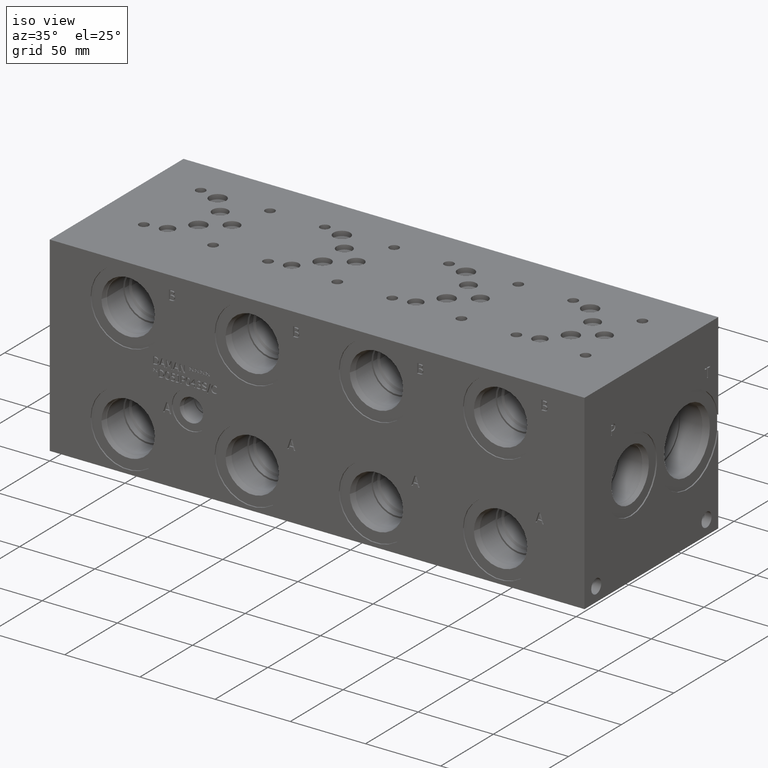
[diagram: clean part render]
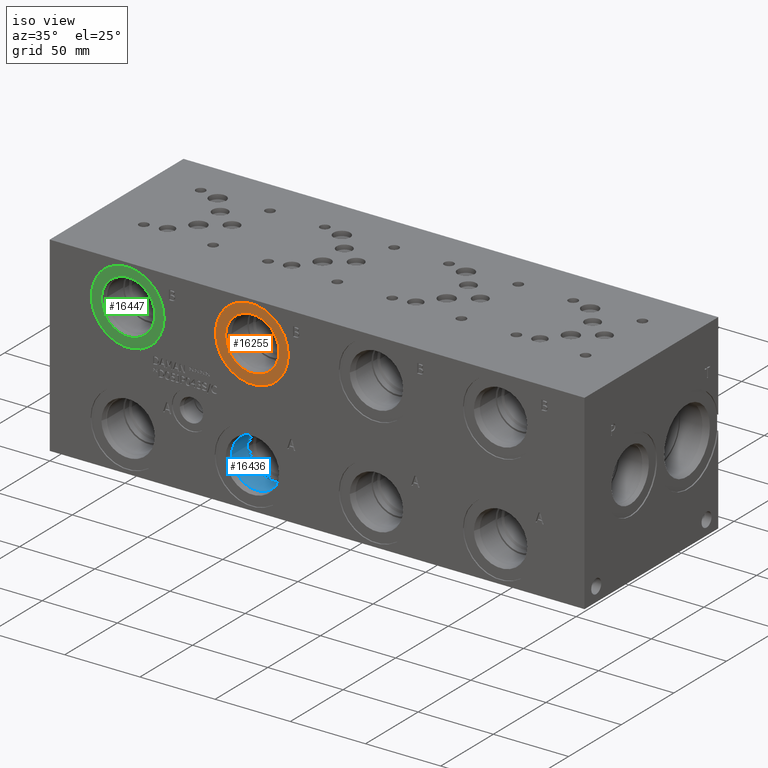
[diagram: same view with three faces highlighted in distinct colors, each labeled with its STEP entity id]
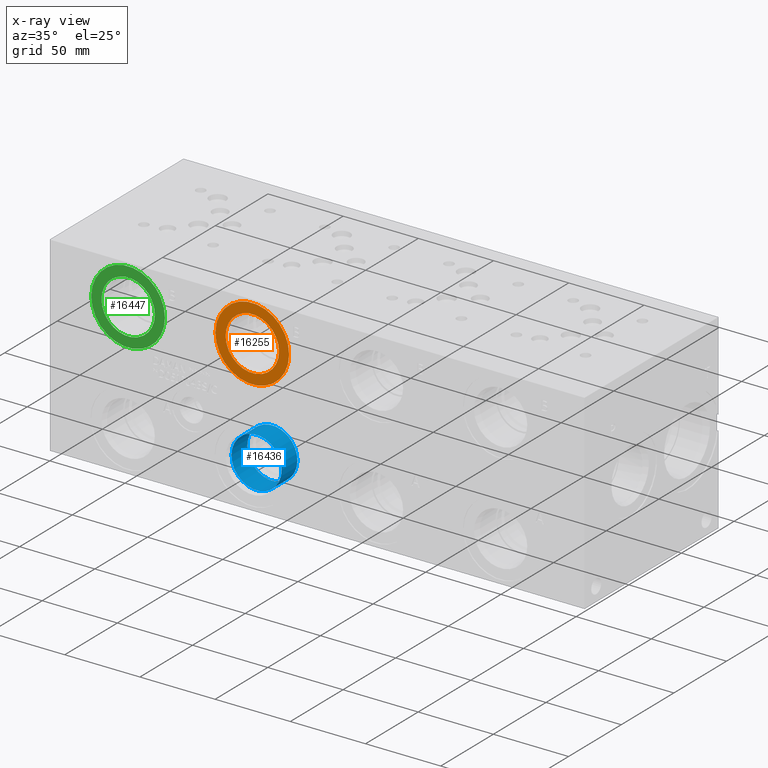
[diagram: x-ray of the same camera — body ghosted, the three highlighted faces saturated]
A machine part, iso view with three faces highlighted in distinct colors.
The next image is the same camera in x-ray (body ghosted, the three faces saturated) — at least one of them is partly hidden behind the body in this view.
Their STEP definitions:

[orange] entity #16255 — the highlighted planar face has unit normal (0, -1, 0).
#575=CIRCLE('',#17070,24.4856);
#576=CIRCLE('',#17071,24.4856);
#577=CIRCLE('',#17072,17.7546);
#1409=FACE_BOUND('',#3048,.T.);
#2105=FACE_OUTER_BOUND('',#3047,.T.);
#3047=EDGE_LOOP('',(#13418,#13419));
#3048=EDGE_LOOP('',(#13420));
#7355=VERTEX_POINT('',#27410);
#7356=VERTEX_POINT('',#27411);
#7357=VERTEX_POINT('',#27414);
#9493=EDGE_CURVE('',#7355,#7356,#575,.T.);
#9494=EDGE_CURVE('',#7356,#7355,#576,.T.);
#9495=EDGE_CURVE('',#7357,#7357,#577,.T.);
#13418=ORIENTED_EDGE('',*,*,#9493,.T.);
#13419=ORIENTED_EDGE('',*,*,#9494,.T.);
#13420=ORIENTED_EDGE('',*,*,#9495,.F.);
#15048=PLANE('',#17069);
#16255=ADVANCED_FACE('',(#2105,#1409),#15048,.T.);
#17069=AXIS2_PLACEMENT_3D('',#27409,#20008,#20009);
#17070=AXIS2_PLACEMENT_3D('',#27412,#20010,#20011);
#17071=AXIS2_PLACEMENT_3D('',#27413,#20012,#20013);
#17072=AXIS2_PLACEMENT_3D('',#27415,#20014,#20015);
#20008=DIRECTION('center_axis',(0.,-1.,0.));
#20009=DIRECTION('ref_axis',(1.,0.,0.));
#20010=DIRECTION('center_axis',(0.,-1.,0.));
#20011=DIRECTION('ref_axis',(1.,0.,0.));
#20012=DIRECTION('center_axis',(0.,-1.,0.));
#20013=DIRECTION('ref_axis',(1.,0.,0.));
#20014=DIRECTION('center_axis',(0.,-1.,0.));
#20015=DIRECTION('ref_axis',(1.,0.,0.));
#27409=CARTESIAN_POINT('Origin',(134.1374,0.7874,100.0125));
#27410=CARTESIAN_POINT('',(158.623,0.7874,100.0125));
#27411=CARTESIAN_POINT('',(109.6518,0.7874,100.0125));
#27412=CARTESIAN_POINT('Origin',(134.1374,0.7874,100.0125));
#27413=CARTESIAN_POINT('Origin',(134.1374,0.7874,100.0125));
#27414=CARTESIAN_POINT('',(116.3828,0.7874,100.0125));
#27415=CARTESIAN_POINT('Origin',(134.1374,0.7874,100.0125));

[blue] entity #16436 — the highlighted cylindrical surface (bore or boss wall) has radius 16.67 mm, axis along (0, -1, 0).
#234=CYLINDRICAL_SURFACE('',#17544,16.67);
#578=CIRCLE('',#17076,16.67);
#866=CIRCLE('',#17541,16.67);
#867=CIRCLE('',#17542,16.67);
#2286=FACE_OUTER_BOUND('',#3259,.T.);
#3259=EDGE_LOOP('',(#14258,#14259,#14260,#14261,#14262));
#4731=LINE('',#28374,#6144);
#6144=VECTOR('',#21110,16.67);
#7358=VERTEX_POINT('',#27421);
#7691=VERTEX_POINT('',#28367);
#7692=VERTEX_POINT('',#28368);
#9499=EDGE_CURVE('',#7358,#7358,#578,.T.);
#9934=EDGE_CURVE('',#7691,#7692,#866,.T.);
#9935=EDGE_CURVE('',#7692,#7691,#867,.T.);
#9937=EDGE_CURVE('',#7358,#7692,#4731,.T.);
#14258=ORIENTED_EDGE('',*,*,#9499,.T.);
#14259=ORIENTED_EDGE('',*,*,#9937,.T.);
#14260=ORIENTED_EDGE('',*,*,#9934,.F.);
#14261=ORIENTED_EDGE('',*,*,#9935,.F.);
#14262=ORIENTED_EDGE('',*,*,#9937,.F.);
#16436=ADVANCED_FACE('',(#2286),#234,.F.);
#17076=AXIS2_PLACEMENT_3D('',#27423,#20025,#20026);
#17541=AXIS2_PLACEMENT_3D('',#28369,#21102,#21103);
#17542=AXIS2_PLACEMENT_3D('',#28370,#21104,#21105);
#17544=AXIS2_PLACEMENT_3D('',#28373,#21108,#21109);
#20025=DIRECTION('center_axis',(0.,-1.,0.));
#20026=DIRECTION('ref_axis',(1.,0.,0.));
#21102=DIRECTION('center_axis',(0.,-1.,0.));
#21103=DIRECTION('ref_axis',(1.,0.,0.));
#21104=DIRECTION('center_axis',(0.,-1.,0.));
#21105=DIRECTION('ref_axis',(1.,0.,0.));
#21108=DIRECTION('center_axis',(0.,-1.,0.));
#21109=DIRECTION('ref_axis',(1.,0.,0.));
#21110=DIRECTION('',(0.,1.,0.));
#27421=CARTESIAN_POINT('',(117.4674,4.8427123058892,26.9875));
#27423=CARTESIAN_POINT('Origin',(134.1374,4.8427123058892,26.9875));
#28367=CARTESIAN_POINT('',(150.8074,19.8374,26.9875));
#28368=CARTESIAN_POINT('',(117.4674,19.8374,26.9875));
#28369=CARTESIAN_POINT('Origin',(134.1374,19.8374,26.9875));
#28370=CARTESIAN_POINT('Origin',(134.1374,19.8374,26.9875));
#28373=CARTESIAN_POINT('Origin',(134.1374,9.9187,26.9875));
#28374=CARTESIAN_POINT('',(117.4674,9.9187,26.9875));

[green] entity #16447 — the highlighted planar face has unit normal (0, 1, 0).
#879=CIRCLE('',#17565,24.4856);
#880=CIRCLE('',#17566,24.4856);
#881=CIRCLE('',#17568,17.7546);
#882=CIRCLE('',#17569,17.7546);
#1442=FACE_BOUND('',#3273,.T.);
#2297=FACE_OUTER_BOUND('',#3272,.T.);
#3272=EDGE_LOOP('',(#14310,#14311));
#3273=EDGE_LOOP('',(#14312,#14313));
#7704=VERTEX_POINT('',#28412);
#7705=VERTEX_POINT('',#28414);
#7706=VERTEX_POINT('',#28418);
#7707=VERTEX_POINT('',#28419);
#9956=EDGE_CURVE('',#7704,#7705,#879,.T.);
#9957=EDGE_CURVE('',#7705,#7704,#880,.T.);
#9958=EDGE_CURVE('',#7706,#7707,#881,.T.);
#9959=EDGE_CURVE('',#7707,#7706,#882,.T.);
#14310=ORIENTED_EDGE('',*,*,#9957,.F.);
#14311=ORIENTED_EDGE('',*,*,#9956,.F.);
#14312=ORIENTED_EDGE('',*,*,#9958,.T.);
#14313=ORIENTED_EDGE('',*,*,#9959,.T.);
#15081=PLANE('',#17567);
#16447=ADVANCED_FACE('',(#2297,#1442),#15081,.F.);
#17565=AXIS2_PLACEMENT_3D('',#28415,#21159,#21160);
#17566=AXIS2_PLACEMENT_3D('',#28416,#21161,#21162);
#17567=AXIS2_PLACEMENT_3D('',#28417,#21163,#21164);
#17568=AXIS2_PLACEMENT_3D('',#28420,#21165,#21166);
#17569=AXIS2_PLACEMENT_3D('',#28421,#21167,#21168);
#21159=DIRECTION('center_axis',(0.,1.,0.));
#21160=DIRECTION('ref_axis',(1.,0.,0.));
#21161=DIRECTION('center_axis',(0.,1.,0.));
#21162=DIRECTION('ref_axis',(1.,0.,0.));
#21163=DIRECTION('center_axis',(0.,1.,0.));
#21164=DIRECTION('ref_axis',(0.,0.,1.));
#21165=DIRECTION('center_axis',(0.,1.,0.));
#21166=DIRECTION('ref_axis',(1.,0.,0.));
#21167=DIRECTION('center_axis',(0.,1.,0.));
#21168=DIRECTION('ref_axis',(1.,0.,0.));
#28412=CARTESIAN_POINT('',(27.1018,0.7874,99.9998));
#28414=CARTESIAN_POINT('',(76.073,0.7874,99.9998));
#28415=CARTESIAN_POINT('Origin',(51.5874,0.7874,99.9998));
#28416=CARTESIAN_POINT('Origin',(51.5874,0.7874,99.9998));
#28417=CARTESIAN_POINT('Origin',(69.342,0.7874,99.9998));
#28418=CARTESIAN_POINT('',(69.342,0.7874,99.9998));
#28419=CARTESIAN_POINT('',(33.8328,0.787399999999998,99.9998));
#28420=CARTESIAN_POINT('Origin',(51.5874,0.7874,99.9998));
#28421=CARTESIAN_POINT('Origin',(51.5874,0.7874,99.9998));